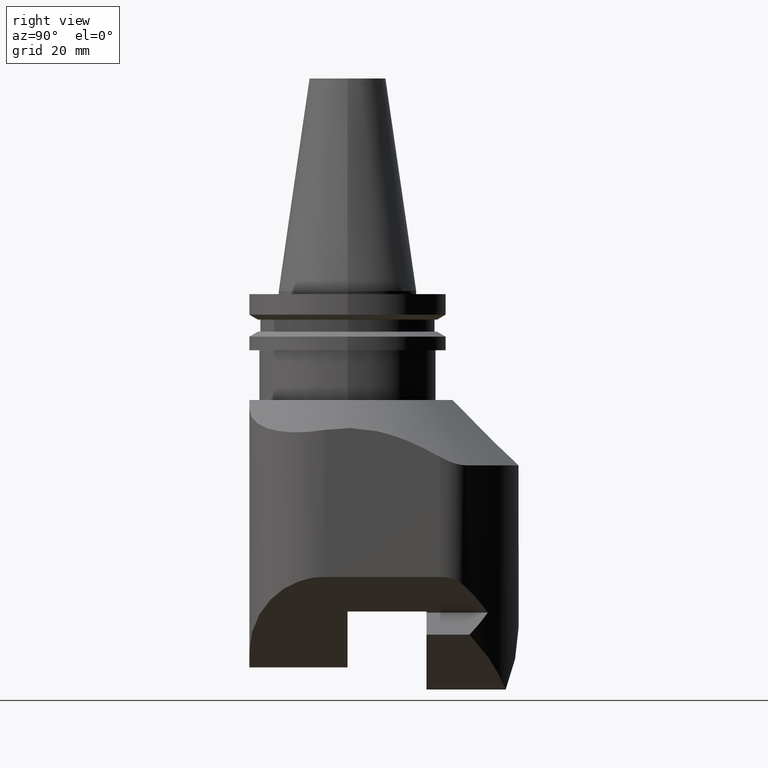
[diagram: clean part render]
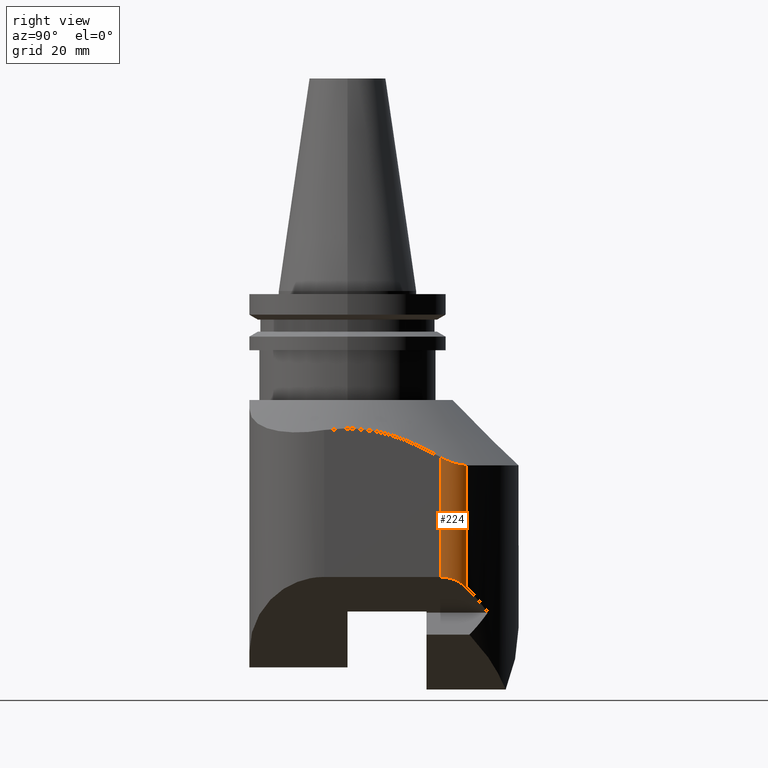
[diagram: same view with one face highlighted and labeled with its STEP entity id]
A machine part, right view. The second image highlights one B-rep face of the part: STEP entity #224.
In plain terms, the highlighted cylindrical surface (partial cylindrical patch) has radius 12 mm, axis along (-0, 0, 1).
Its self-contained STEP definition (entity closure, byte-faithful):
#120=EDGE_CURVE('Unnamed[1]',#343,#344,#345,.T.);
#158=EDGE_CURVE('Unnamed[1]',#406,#352,#407,.T.);
#170=EDGE_CURVE('Unnamed[1]',#343,#406,#424,.T.);
#189=EDGE_CURVE('Unnamed[1]',#344,#352,#450,.T.);
#224=ADVANCED_FACE('Unnamed[1]',(#495),#496,.T.);
#343=VERTEX_POINT('',#639);
#344=VERTEX_POINT('',#640);
#345=LINE('',#641,#642);
#352=VERTEX_POINT('',#652);
#406=VERTEX_POINT('',#722);
#407=LINE('',#723,#724);
#424=ELLIPSE('',#756,16.9705627484774,12.0);
#450=B_SPLINE_CURVE_WITH_KNOTS('',3,(#808,#809,#810,#811,#812,#813,#814,#815,#816,#817,#818,#819,#820,#821,#822,#823,#824,#825),.UNSPECIFIED.,.F.,.F.,(4,2,2,2,2,2,2,2,4),(27.7605098795428,29.3034102222533,30.8463105649638,32.3892109076743,33.6780644914804,34.9669180752865,36.2557716590926,37.5446252428987,38.8334788267049),.UNSPECIFIED.);
#495=FACE_OUTER_BOUND('',#906,.T.);
#496=CYLINDRICAL_SURFACE('',#907,12.0);
#639=CARTESIAN_POINT('',(43.0,29.7993288515026,-91.8578643762685));
#640=CARTESIAN_POINT('',(43.0000000000008,29.7993288515026,-53.3163454381138));
#641=CARTESIAN_POINT('',(43.0000000000008,29.7993288515026,-276.895414657619));
#642=VECTOR('',#1115,1.0);
#652=CARTESIAN_POINT('',(39.6511627906985,38.1154206240149,-56.0000000000004));
#722=CARTESIAN_POINT('',(39.6511627906986,38.115420624015,-95.2067015855701));
#723=CARTESIAN_POINT('',(39.6511627906986,38.1154206240149,-276.895414657619));
#724=VECTOR('',#1184,1.0);
#756=AXIS2_PLACEMENT_3D('',#1205,#1206,#1207);
#808=CARTESIAN_POINT('',(42.9857557853325,29.2148134501773,-52.9738446275043));
#809=CARTESIAN_POINT('',(43.0086331019977,29.6839232987416,-53.2564551514206));
#810=CARTESIAN_POINT('',(43.0044193920009,30.171432085167,-53.5311065562401));
#811=CARTESIAN_POINT('',(42.9330994531678,31.1578877851202,-54.0460814201967));
#812=CARTESIAN_POINT('',(42.865901481108,31.6571703282046,-54.2865629527265));
#813=CARTESIAN_POINT('',(42.6696571086593,32.6401554698778,-54.7203428433219));
#814=CARTESIAN_POINT('',(42.54055220188,33.1238529322254,-54.9136263698599));
#815=CARTESIAN_POINT('',(42.2587486622815,33.9713573270026,-55.21908374886));
#816=CARTESIAN_POINT('',(42.103402104987,34.3720408572199,-55.3502697574906));
#817=CARTESIAN_POINT('',(41.7370472659778,35.1762284600335,-55.5817398436669));
#818=CARTESIAN_POINT('',(41.5259916391165,35.5797173286451,-55.6820018060097));
#819=CARTESIAN_POINT('',(41.0552206566601,36.3645347479104,-55.8425709212611));
#820=CARTESIAN_POINT('',(40.7952706044606,36.7461972633082,-55.9029357961453));
#821=CARTESIAN_POINT('',(40.2421062007657,37.4667782265759,-55.9816498859721));
#822=CARTESIAN_POINT('',(39.9488912541502,37.8056961193793,-56.0000000000004));
#823=CARTESIAN_POINT('',(39.3534343272467,38.4251451286505,-56.0000000000004));
#824=CARTESIAN_POINT('',(39.0263570396004,38.731512213839,-55.9816498859725));
#825=CARTESIAN_POINT('',(38.677267152629,39.0221033292384,-55.9422928410591));
#906=EDGE_LOOP('',(#1269,#1270,#1271,#1272));
#907=AXIS2_PLACEMENT_3D('',#1273,#1274,#1275);
#1115=DIRECTION('',(-1.22464679914735E-016,2.22044604925031E-016,1.0));
#1184=DIRECTION('',(-1.22464679914735E-016,2.22044604925031E-016,1.0));
#1205=CARTESIAN_POINT('',(31.0000000000007,29.7993288515026,-103.857864376268));
#1206=DIRECTION('',(-0.707106781186558,4.71027737605135E-016,0.707106781186537));
#1207=DIRECTION('',(-0.707106781186537,2.43604851491919E-016,-0.707106781186558));
#1269=ORIENTED_EDGE('',*,*,#170,.T.);
#1270=ORIENTED_EDGE('',*,*,#158,.T.);
#1271=ORIENTED_EDGE('',*,*,#189,.F.);
#1272=ORIENTED_EDGE('',*,*,#120,.F.);
#1273=CARTESIAN_POINT('',(31.0000000000007,29.7993288515026,-276.895414657619));
#1274=DIRECTION('',(-1.22464679914735E-016,2.22044604925031E-016,1.0));
#1275=DIRECTION('',(5.66553889764798E-016,1.0,-2.22044604925031E-016));